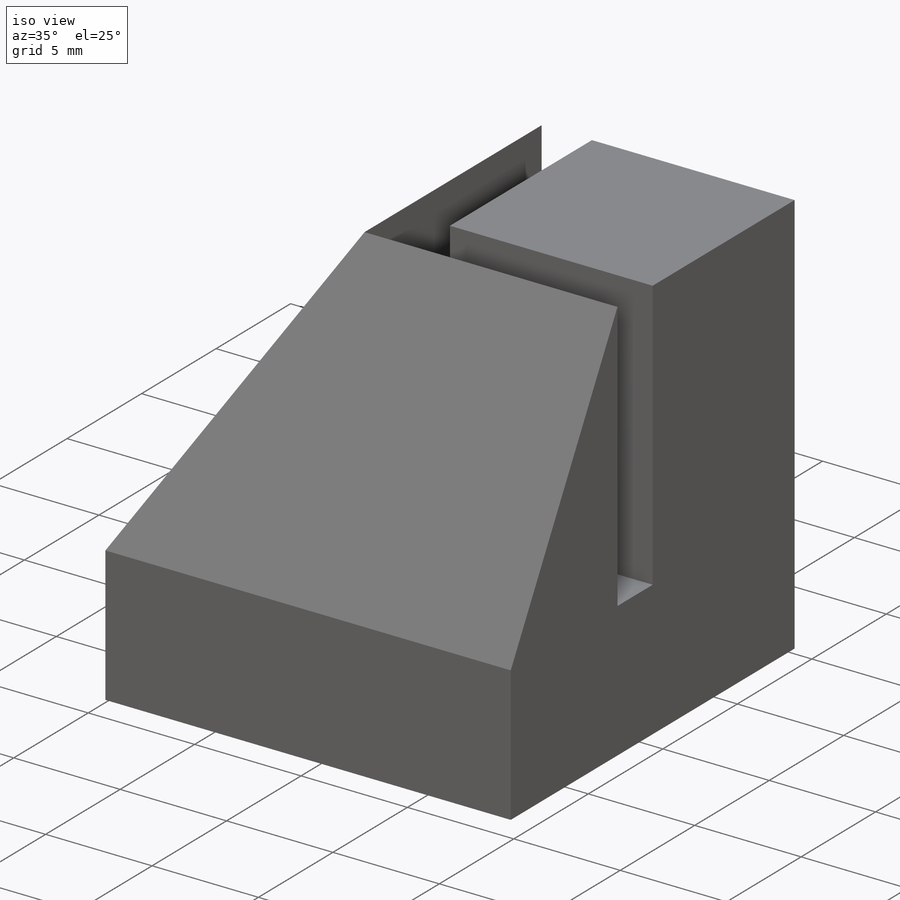
[diagram: iso view]
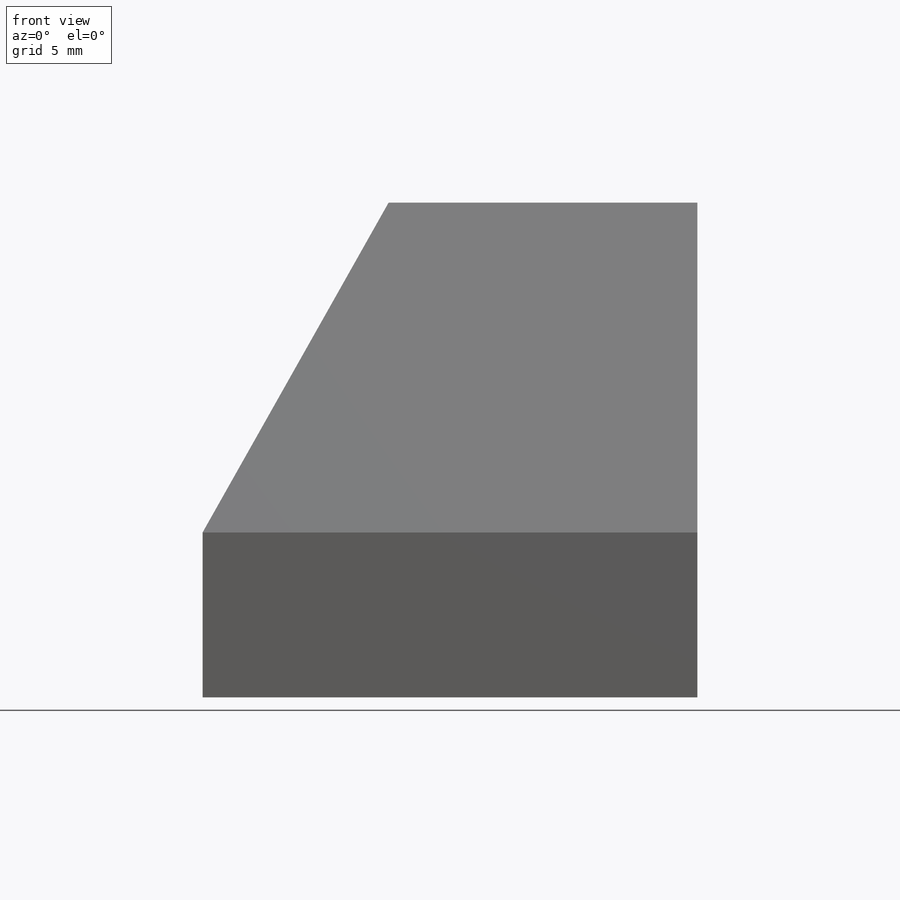
[diagram: front view]
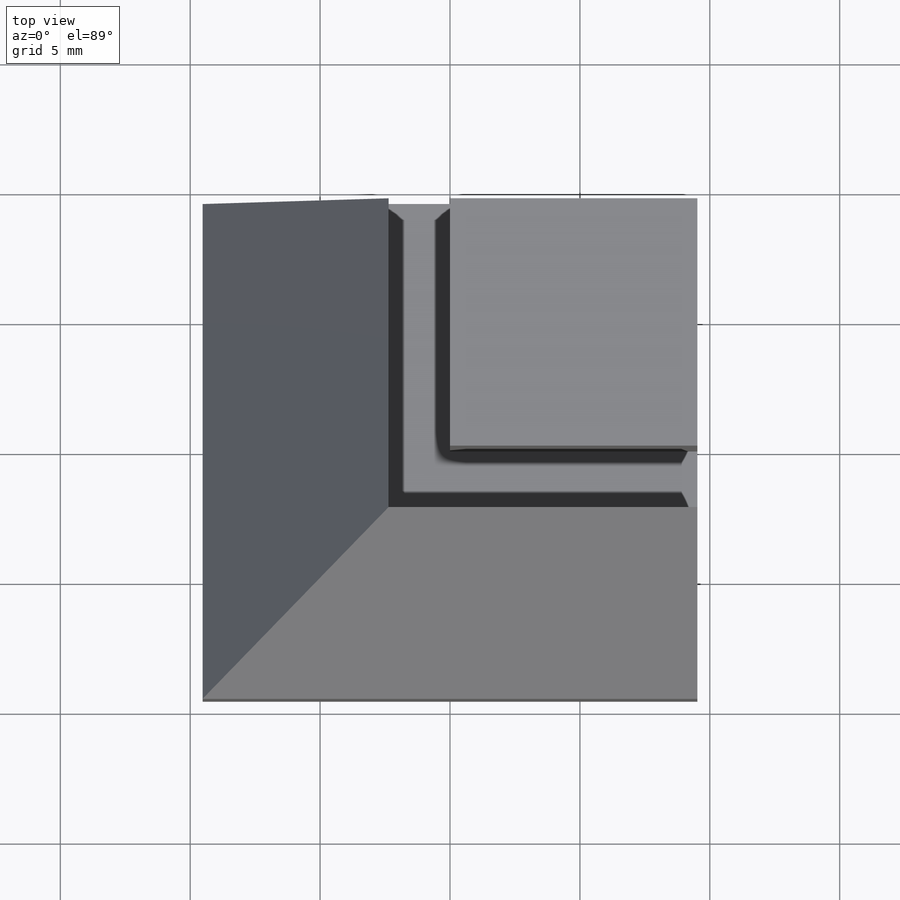
[diagram: top view]
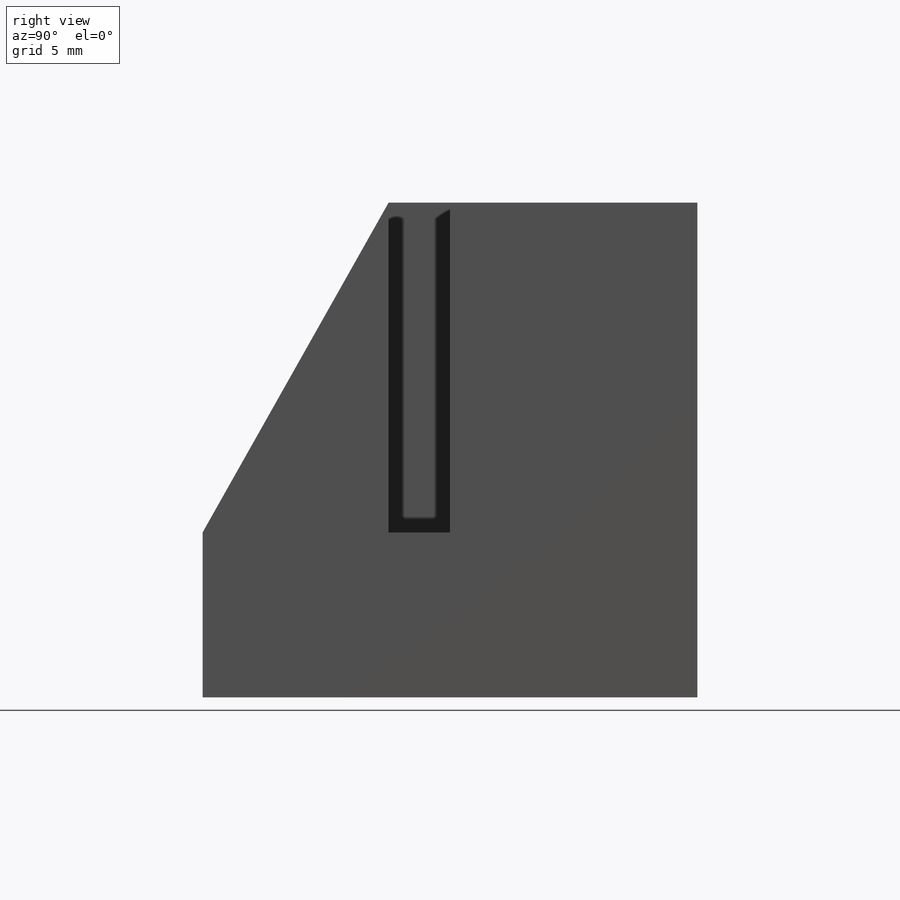
[diagram: right view]
SOLIDWORKS PART (.sldprt)
format: sldprt  version: not decoded by parser v0  size: 253,952 bytes
history: native  units: mm
features: sketch x4, cut_extrude x3, material x1, extrude x1 (+12 scaffold rows collapsed)
feature tree (21):
  scaffold x12  (default folders/planes/origin — collapsed)
  material  "Material <not specified>"
  sketch  "Sketch1"  dims[D1=19.05mm D2=19.05mm]
  extrude  "Body"  Depth=19.05mm
  sketch  "Sketch2"  dims[D1=2.3622mm D2=2.794mm D3=2.3622mm D4=2.794mm]
  cut_extrude  "Slot"  Depth=12.7mm
  sketch  "Sketch3"
  cut_extrude  "Bevel Left"  Depth=19.05mm
  sketch  "Sketch4"
  cut_extrude  "Bevel Right"  Depth=19.05mm
decode coverage: 6 of 8 modeling features carry decoded parameters
note: suppression state not decoded; provenance and decode notes live in map.json
